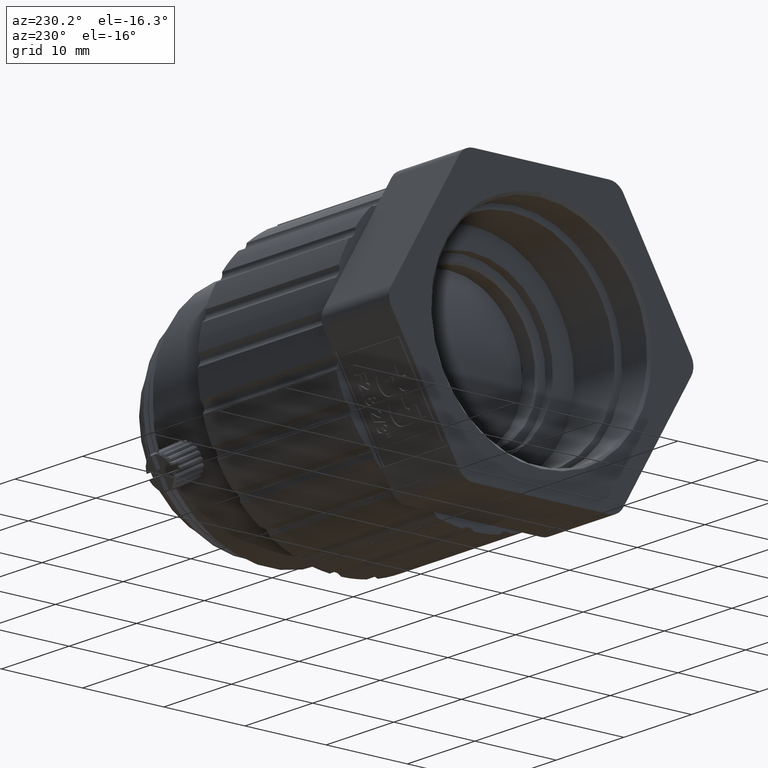
[diagram: clean part render]
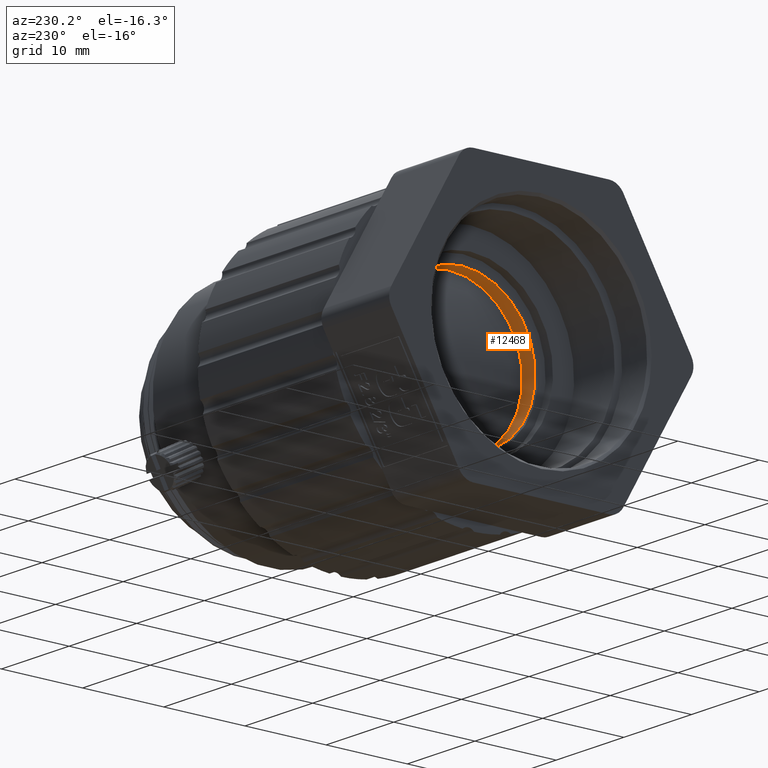
[diagram: same view with one face highlighted and labeled with its STEP entity id]
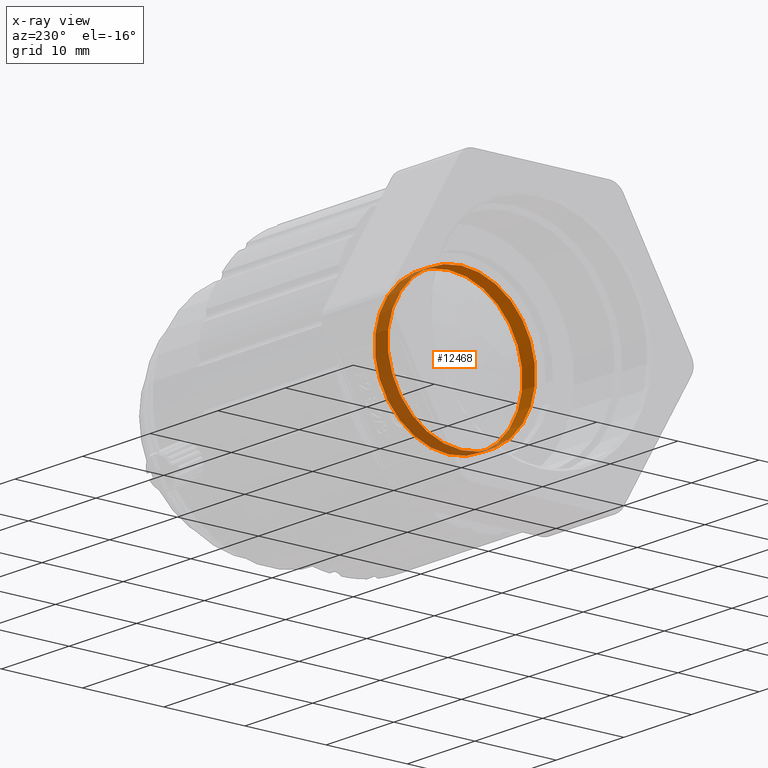
[diagram: x-ray of the same camera — body ghosted, the highlighted face saturated]
A machine part, auxiliary view. The second image highlights one B-rep face of the part: STEP entity #12468.
The next image is the same camera in x-ray: the body ghosted, the highlighted face saturated — about 51% of this face is hidden behind the body in this view.
In plain terms, the highlighted cylindrical surface (bore or boss wall) has radius 9.0999 mm, axis along (-1, -0, -0).
Its self-contained STEP definition (entity closure, byte-faithful):
#202 = DIRECTION ( 'NONE',  ( -1.000000000000000000, -0.000000000000000000, -0.000000000000000000 ) ) ;
#499 = CARTESIAN_POINT ( 'NONE',  ( -9.738141630840413399, 3.111155698410916770, 46.50038591147431788 ) ) ;
#774 = FACE_OUTER_BOUND ( 'NONE', #3533, .T. ) ;
#881 = ORIENTED_EDGE ( 'NONE', *, *, #15299, .F. ) ;
#1226 = DIRECTION ( 'NONE',  ( 0.000000000000000000, 0.000000000000000000, 1.000000000000000000 ) ) ;
#1838 = AXIS2_PLACEMENT_3D ( 'NONE', #499, #12119, #4840 ) ;
#2123 = CARTESIAN_POINT ( 'NONE',  ( -23.06732615017725863, 3.111155698410916770, 46.50038591147431788 ) ) ;
#2718 = AXIS2_PLACEMENT_3D ( 'NONE', #2735, #202, #1226 ) ;
#2735 = CARTESIAN_POINT ( 'NONE',  ( -7.838141133141851569, 3.111155698410916770, 46.50038591147431788 ) ) ;
#3533 = EDGE_LOOP ( 'NONE', ( #881 ) ) ;
#3624 = CIRCLE ( 'NONE', #1838, 9.099905781190242848 ) ;
#4434 = FACE_OUTER_BOUND ( 'NONE', #6060, .T. ) ;
#4840 = DIRECTION ( 'NONE',  ( 0.000000000000000000, 0.000000000000000000, 1.000000000000000000 ) ) ;
#5711 = DIRECTION ( 'NONE',  ( -1.000000000000000000, -0.000000000000000000, -0.000000000000000000 ) ) ;
#6042 = VERTEX_POINT ( 'NONE', #10923 ) ;
#6060 = EDGE_LOOP ( 'NONE', ( #6696 ) ) ;
#6280 = VERTEX_POINT ( 'NONE', #7249 ) ;
#6696 = ORIENTED_EDGE ( 'NONE', *, *, #13476, .T. ) ;
#7249 = CARTESIAN_POINT ( 'NONE',  ( -9.738141630840413399, 3.111155698410916770, 55.60029169266456250 ) ) ;
#8517 = AXIS2_PLACEMENT_3D ( 'NONE', #2123, #5711, #12827 ) ;
#9315 = CYLINDRICAL_SURFACE ( 'NONE', #8517, 9.099905781190130938 ) ;
#10923 = CARTESIAN_POINT ( 'NONE',  ( -7.838141133141851569, 3.111155698410916770, 55.60029169266444882 ) ) ;
#12119 = DIRECTION ( 'NONE',  ( -1.000000000000000000, -0.000000000000000000, -0.000000000000000000 ) ) ;
#12468 = ADVANCED_FACE ( 'NONE', ( #774, #4434 ), #9315, .F. ) ;
#12827 = DIRECTION ( 'NONE',  ( 0.000000000000000000, 0.000000000000000000, 1.000000000000000000 ) ) ;
#13476 = EDGE_CURVE ( 'NONE', #6280, #6280, #3624, .T. ) ;
#15299 = EDGE_CURVE ( 'NONE', #6042, #6042, #15460, .T. ) ;
#15460 = CIRCLE ( 'NONE', #2718, 9.099905781190130938 ) ;